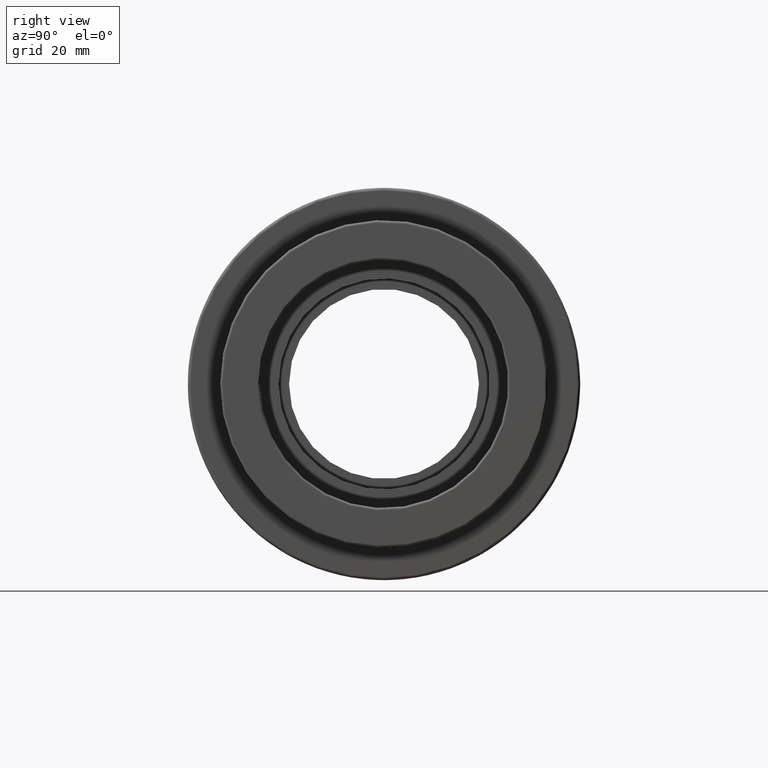
[diagram: clean part render]
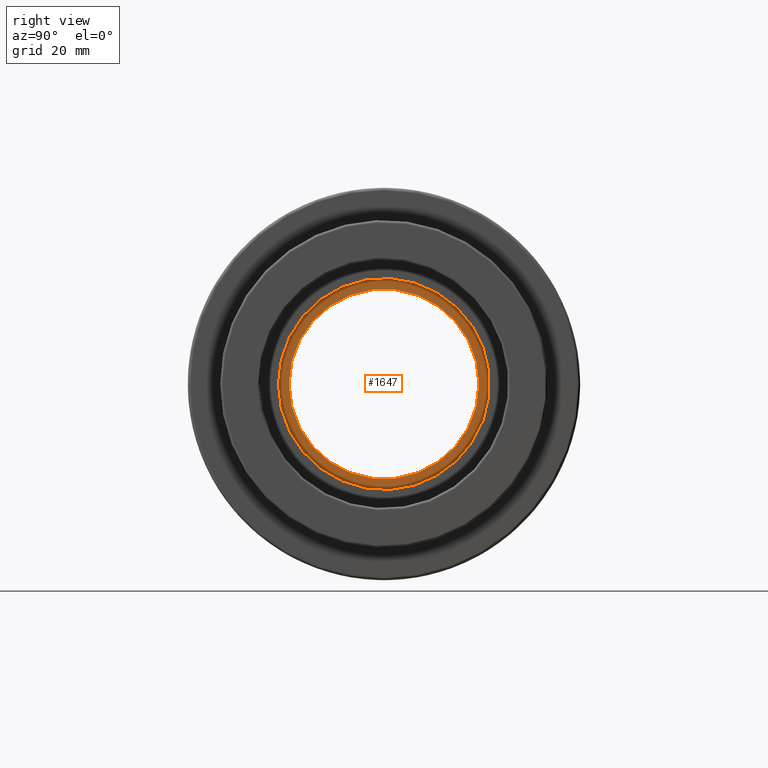
[diagram: same view with one face highlighted and labeled with its STEP entity id]
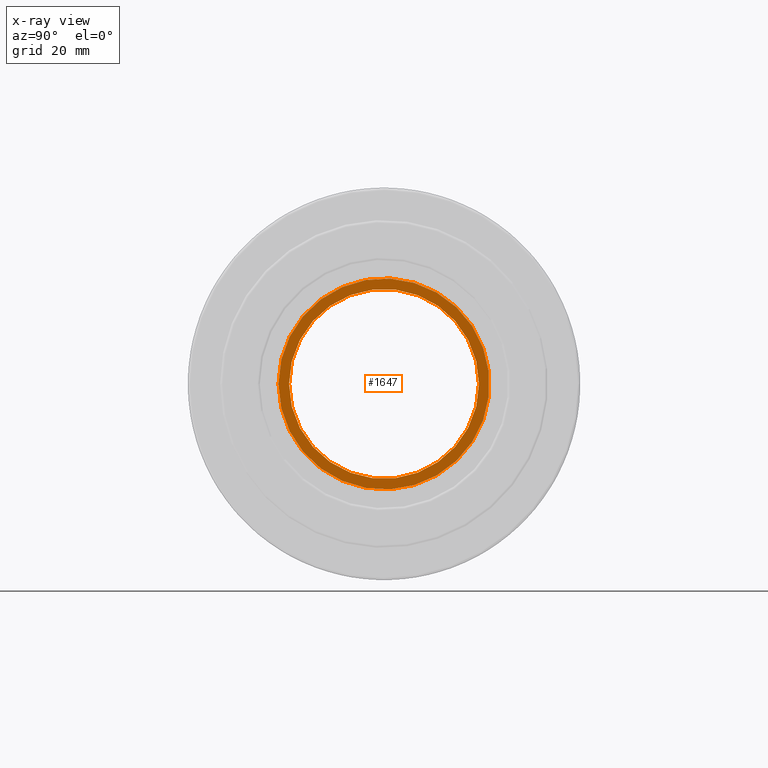
[diagram: x-ray of the same camera — body ghosted, the highlighted face saturated]
A machine part, right view. The second image highlights one B-rep face of the part: STEP entity #1647.
The next image is the same camera in x-ray: the body ghosted, the highlighted face saturated — about 0% of this face is hidden behind the body in this view.
In plain terms, the highlighted planar face has unit normal (1, 0, 0).
Its self-contained STEP definition (entity closure, byte-faithful):
#53=FACE_BOUND('',#346,.T.);
#141=CIRCLE('',#1808,19.1212);
#147=CIRCLE('',#1822,21.25);
#237=FACE_OUTER_BOUND('',#345,.T.);
#345=EDGE_LOOP('',(#1482));
#346=EDGE_LOOP('',(#1483));
#799=VERTEX_POINT('',#2779);
#805=VERTEX_POINT('',#2801);
#1027=EDGE_CURVE('',#799,#799,#141,.T.);
#1035=EDGE_CURVE('',#805,#805,#147,.T.);
#1482=ORIENTED_EDGE('',*,*,#1035,.F.);
#1483=ORIENTED_EDGE('',*,*,#1027,.T.);
#1557=PLANE('',#1821);
#1647=ADVANCED_FACE('',(#237,#53),#1557,.T.);
#1808=AXIS2_PLACEMENT_3D('',#2780,#2283,#2284);
#1821=AXIS2_PLACEMENT_3D('',#2800,#2311,#2312);
#1822=AXIS2_PLACEMENT_3D('',#2802,#2313,#2314);
#2283=DIRECTION('center_axis',(-1.,-4.89858719658941E-16,0.));
#2284=DIRECTION('ref_axis',(0.,0.,1.));
#2311=DIRECTION('center_axis',(1.,4.89858719658941E-16,0.));
#2312=DIRECTION('ref_axis',(0.,0.,-1.));
#2313=DIRECTION('center_axis',(-1.,-4.89858719658941E-16,0.));
#2314=DIRECTION('ref_axis',(0.,0.,1.));
#2779=CARTESIAN_POINT('',(-6.2,-19.1212,0.));
#2780=CARTESIAN_POINT('Origin',(-6.20000000000001,5.7803328919755E-15,0.));
#2800=CARTESIAN_POINT('Origin',(-6.2,-21.25,0.));
#2801=CARTESIAN_POINT('',(-6.2,-21.25,0.));
#2802=CARTESIAN_POINT('Origin',(-6.20000000000001,5.7803328919755E-15,0.));